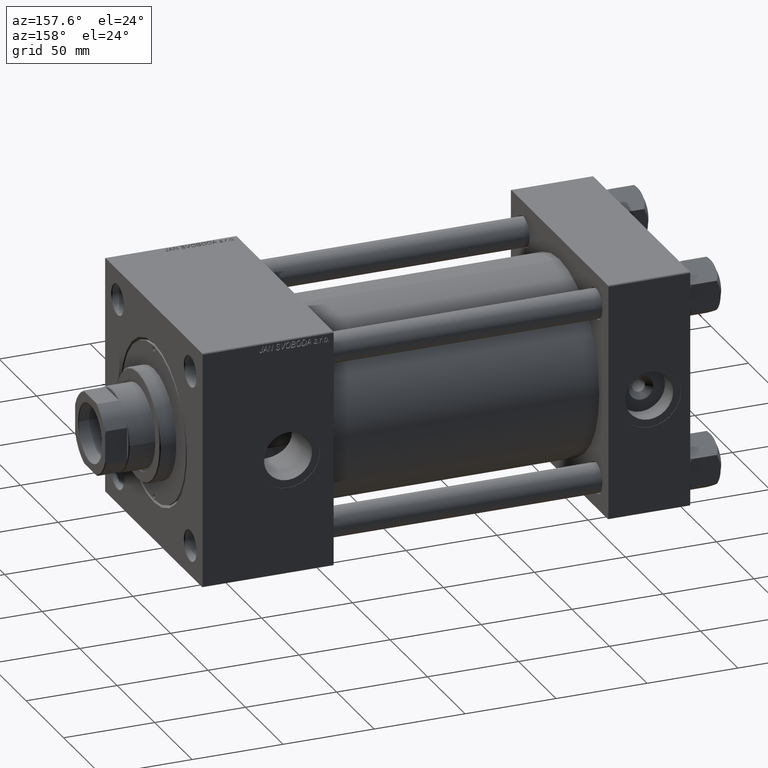
[diagram: clean part render]
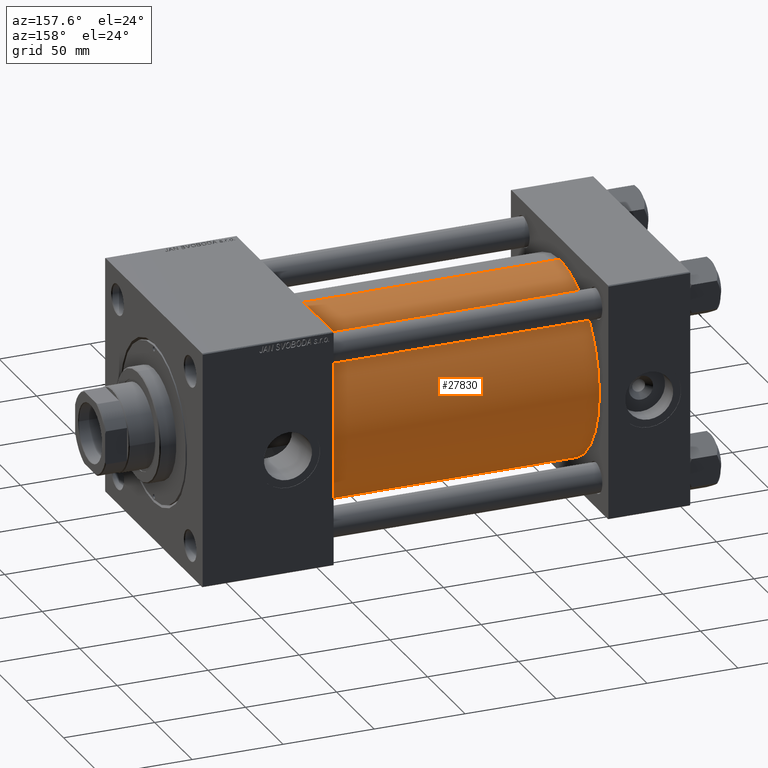
[diagram: same view with one face highlighted and labeled with its STEP entity id]
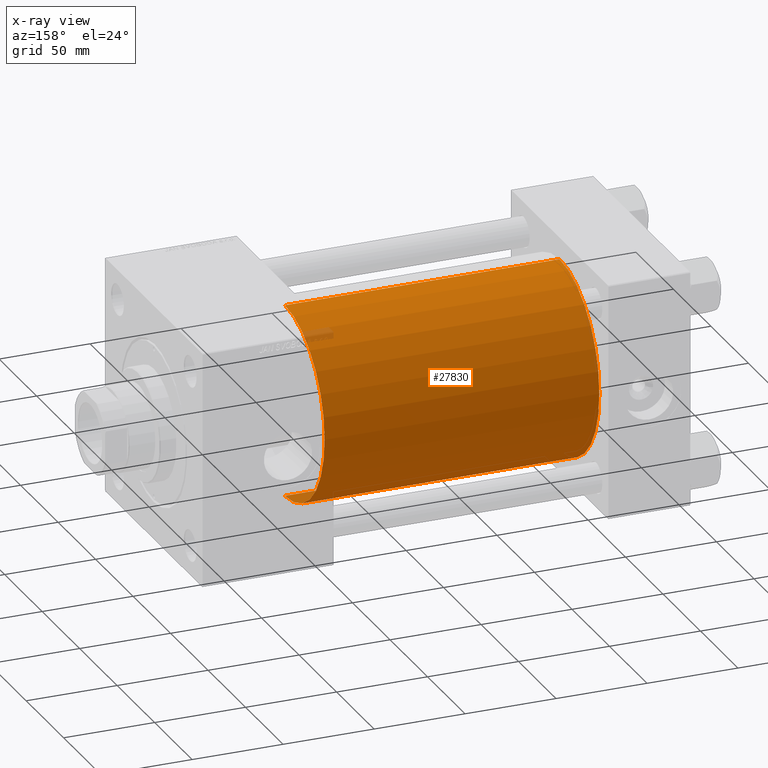
[diagram: x-ray of the same camera — body ghosted, the highlighted face saturated]
A machine part, auxiliary view. The second image highlights one B-rep face of the part: STEP entity #27830.
The next image is the same camera in x-ray: the body ghosted, the highlighted face saturated — about 1% of this face is hidden behind the body in this view.
In plain terms, the highlighted cylindrical surface (partial cylindrical patch) has radius 53 mm, axis along (-1, -0, -0).
Its self-contained STEP definition (entity closure, byte-faithful):
#668 = CARTESIAN_POINT ( 'NONE',  ( 196.0000000000000000, -2.602085213965210642E-15, 0.000000000000000000 ) ) ;
#1680 = DIRECTION ( 'NONE',  ( 0.000000000000000000, 0.000000000000000000, -1.000000000000000000 ) ) ;
#3401 = DIRECTION ( 'NONE',  ( 0.000000000000000000, 0.000000000000000000, 1.000000000000000000 ) ) ;
#4668 = VERTEX_POINT ( 'NONE', #19412 ) ;
#4796 = LINE ( 'NONE', #28687, #39796 ) ;
#5724 = CIRCLE ( 'NONE', #8964, 53.00000000000000711 ) ;
#7464 = DIRECTION ( 'NONE',  ( 0.000000000000000000, 0.000000000000000000, 1.000000000000000000 ) ) ;
#7500 = CYLINDRICAL_SURFACE ( 'NONE', #14608, 53.00000000000000711 ) ;
#8964 = AXIS2_PLACEMENT_3D ( 'NONE', #668, #47671, #1680 ) ;
#13098 = CARTESIAN_POINT ( 'NONE',  ( 44.99999999999998579, -2.602085213965210642E-15, 53.00000000000000711 ) ) ;
#13164 = DIRECTION ( 'NONE',  ( -1.000000000000000000, -0.000000000000000000, -0.000000000000000000 ) ) ;
#14608 = AXIS2_PLACEMENT_3D ( 'NONE', #26772, #50674, #3401 ) ;
#15920 = VERTEX_POINT ( 'NONE', #41839 ) ;
#18109 = VERTEX_POINT ( 'NONE', #44507 ) ;
#19412 = CARTESIAN_POINT ( 'NONE',  ( 44.99999999999998579, 3.888542821515762466E-15, -53.00000000000000711 ) ) ;
#20608 = EDGE_CURVE ( 'NONE', #18109, #29114, #4796, .T. ) ;
#21630 = LINE ( 'NONE', #48115, #46326 ) ;
#23584 = CIRCLE ( 'NONE', #50666, 53.00000000000000711 ) ;
#24042 = DIRECTION ( 'NONE',  ( -1.000000000000000000, -0.000000000000000000, -0.000000000000000000 ) ) ;
#24861 = EDGE_LOOP ( 'NONE', ( #37227, #29029, #32958, #31597 ) ) ;
#26772 = CARTESIAN_POINT ( 'NONE',  ( 196.0000000000000000, -2.602085213965210642E-15, 0.000000000000000000 ) ) ;
#27534 = FACE_OUTER_BOUND ( 'NONE', #24861, .T. ) ;
#27830 = ADVANCED_FACE ( 'NONE', ( #27534 ), #7500, .T. ) ;
#28687 = CARTESIAN_POINT ( 'NONE',  ( 196.0000000000000000, -2.602085213965210642E-15, 53.00000000000000711 ) ) ;
#29029 = ORIENTED_EDGE ( 'NONE', *, *, #48207, .T. ) ;
#29114 = VERTEX_POINT ( 'NONE', #13098 ) ;
#29801 = EDGE_CURVE ( 'NONE', #4668, #29114, #23584, .T. ) ;
#31597 = ORIENTED_EDGE ( 'NONE', *, *, #20608, .F. ) ;
#32958 = ORIENTED_EDGE ( 'NONE', *, *, #29801, .T. ) ;
#34173 = EDGE_CURVE ( 'NONE', #15920, #18109, #5724, .T. ) ;
#37227 = ORIENTED_EDGE ( 'NONE', *, *, #34173, .F. ) ;
#39796 = VECTOR ( 'NONE', #24042, 1000.000000000000000 ) ;
#41839 = CARTESIAN_POINT ( 'NONE',  ( 196.0000000000000000, 3.888542821515762466E-15, -53.00000000000000711 ) ) ;
#42673 = CARTESIAN_POINT ( 'NONE',  ( 44.99999999999998579, -2.602085213965210642E-15, 0.000000000000000000 ) ) ;
#44507 = CARTESIAN_POINT ( 'NONE',  ( 196.0000000000000000, -2.602085213965210642E-15, 53.00000000000000711 ) ) ;
#46326 = VECTOR ( 'NONE', #13164, 1000.000000000000000 ) ;
#47022 = DIRECTION ( 'NONE',  ( 1.000000000000000000, -0.000000000000000000, 0.000000000000000000 ) ) ;
#47671 = DIRECTION ( 'NONE',  ( 1.000000000000000000, 0.000000000000000000, 0.000000000000000000 ) ) ;
#48115 = CARTESIAN_POINT ( 'NONE',  ( 196.0000000000000000, 3.888542821515762466E-15, -53.00000000000000711 ) ) ;
#48207 = EDGE_CURVE ( 'NONE', #15920, #4668, #21630, .T. ) ;
#50666 = AXIS2_PLACEMENT_3D ( 'NONE', #42673, #47022, #7464 ) ;
#50674 = DIRECTION ( 'NONE',  ( -1.000000000000000000, -0.000000000000000000, -0.000000000000000000 ) ) ;